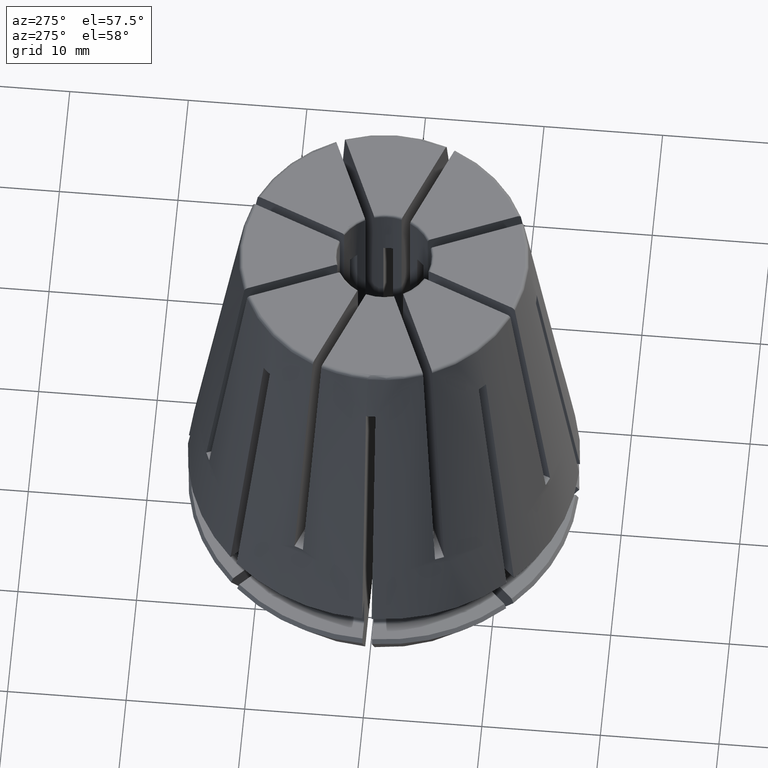
[diagram: clean part render]
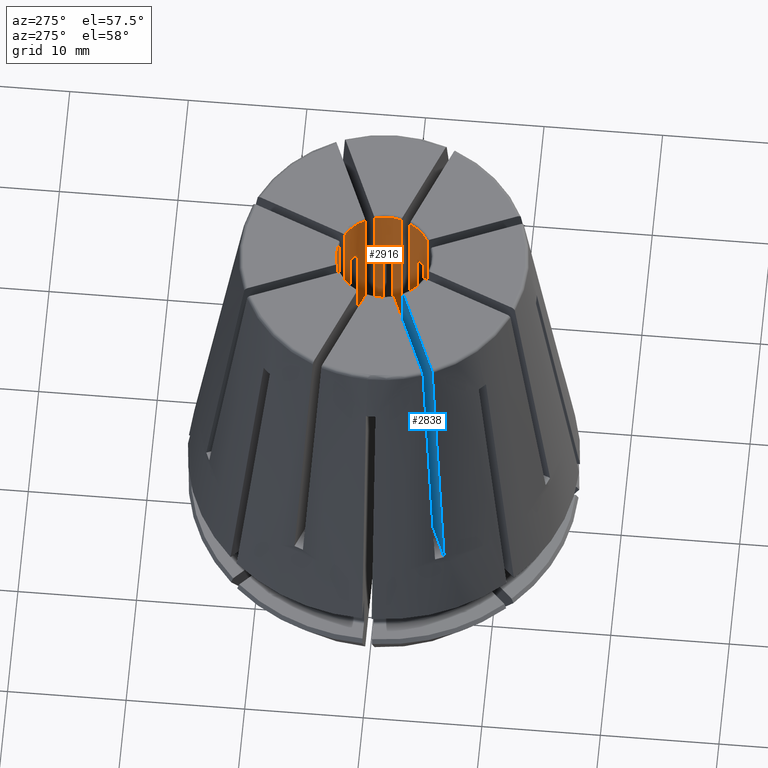
[diagram: same view with the hole feature highlighted: cylindrical wall and planar end face, labeled with their STEP entity ids]
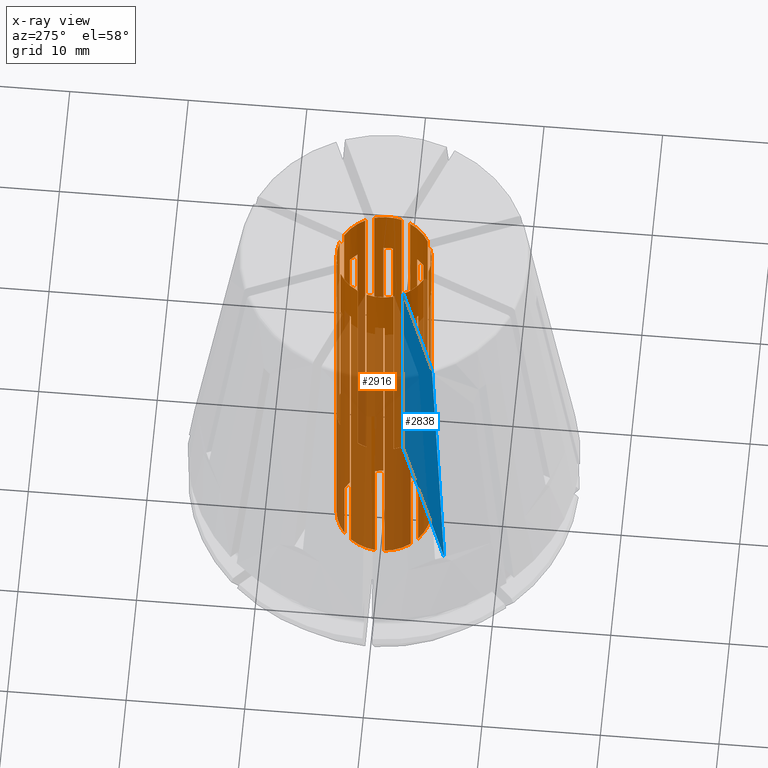
[diagram: x-ray of the same camera — body ghosted, the hole faces saturated]
A machine part, auxiliary view. The highlighted faces form one hole feature of diameter 8 mm: the cylindrical wall (entity #2916, orange) and its adjacent planar end face (entity #2838, blue) — they share a circular edge in the B-rep.
The next image is the same camera in x-ray (body ghosted, the hole faces saturated) — the bore reads through the body.
Wall:
#28=CYLINDRICAL_SURFACE('',#3250,4.);
#224=LINE('',#4088,#384);
#227=LINE('',#4115,#387);
#232=LINE('',#4150,#392);
#235=LINE('',#4177,#395);
#238=LINE('',#4195,#398);
#247=LINE('',#4263,#407);
#248=LINE('',#4265,#408);
#261=LINE('',#4349,#421);
#263=LINE('',#4361,#423);
#272=LINE('',#4429,#432);
#273=LINE('',#4431,#433);
#286=LINE('',#4515,#446);
#292=LINE('',#4562,#452);
#295=LINE('',#4569,#455);
#308=LINE('',#4656,#468);
#320=LINE('',#4918,#480);
#323=LINE('',#4925,#483);
#326=LINE('',#4945,#486);
#330=LINE('',#4977,#490);
#334=LINE('',#5004,#494);
#339=LINE('',#5046,#499);
#341=LINE('',#5050,#501);
#348=LINE('',#5097,#508);
#350=LINE('',#5106,#510);
#374=LINE('',#5396,#534);
#375=LINE('',#5397,#535);
#376=LINE('',#5398,#536);
#377=LINE('',#5399,#537);
#378=LINE('',#5400,#538);
#379=LINE('',#5401,#539);
#380=LINE('',#5402,#540);
#381=LINE('',#5403,#541);
#384=VECTOR('',#3275,1000.);
#387=VECTOR('',#3280,1000.);
#392=VECTOR('',#3299,1000.);
#395=VECTOR('',#3304,1000.);
#398=VECTOR('',#3315,1000.);
#407=VECTOR('',#3334,1000.);
#408=VECTOR('',#3337,1000.);
#421=VECTOR('',#3362,1000.);
#423=VECTOR('',#3366,1000.);
#432=VECTOR('',#3385,1000.);
#433=VECTOR('',#3388,1000.);
#446=VECTOR('',#3413,1000.);
#452=VECTOR('',#3423,1000.);
#455=VECTOR('',#3428,1000.);
#468=VECTOR('',#3459,1000.);
#480=VECTOR('',#3691,1000.);
#483=VECTOR('',#3696,1000.);
#486=VECTOR('',#3701,1000.);
#490=VECTOR('',#3719,1000.);
#494=VECTOR('',#3731,1000.);
#499=VECTOR('',#3744,1000.);
#501=VECTOR('',#3748,1000.);
#508=VECTOR('',#3763,1000.);
#510=VECTOR('',#3767,1000.);
#534=VECTOR('',#4037,1000.);
#535=VECTOR('',#4038,1000.);
#536=VECTOR('',#4039,1000.);
#537=VECTOR('',#4040,1000.);
#538=VECTOR('',#4041,1000.);
#539=VECTOR('',#4042,1000.);
#540=VECTOR('',#4043,1000.);
#541=VECTOR('',#4044,1000.);
#1302=ORIENTED_EDGE('',*,*,#1454,.F.);
#1303=ORIENTED_EDGE('',*,*,#1466,.T.);
#1304=ORIENTED_EDGE('',*,*,#1805,.T.);
#1305=ORIENTED_EDGE('',*,*,#1737,.F.);
#1306=ORIENTED_EDGE('',*,*,#1746,.F.);
#1307=ORIENTED_EDGE('',*,*,#1734,.T.);
#1308=ORIENTED_EDGE('',*,*,#1679,.T.);
#1309=ORIENTED_EDGE('',*,*,#1540,.F.);
#1310=ORIENTED_EDGE('',*,*,#1764,.F.);
#1311=ORIENTED_EDGE('',*,*,#1898,.T.);
#1312=ORIENTED_EDGE('',*,*,#1704,.T.);
#1313=ORIENTED_EDGE('',*,*,#1490,.F.);
#1314=ORIENTED_EDGE('',*,*,#1486,.F.);
#1315=ORIENTED_EDGE('',*,*,#1899,.T.);
#1316=ORIENTED_EDGE('',*,*,#1862,.T.);
#1317=ORIENTED_EDGE('',*,*,#1776,.F.);
#1318=ORIENTED_EDGE('',*,*,#1468,.F.);
#1319=ORIENTED_EDGE('',*,*,#1900,.T.);
#1320=ORIENTED_EDGE('',*,*,#1639,.T.);
#1321=ORIENTED_EDGE('',*,*,#1901,.F.);
#1322=ORIENTED_EDGE('',*,*,#1748,.F.);
#1323=ORIENTED_EDGE('',*,*,#1743,.T.);
#1324=ORIENTED_EDGE('',*,*,#1657,.T.);
#1325=ORIENTED_EDGE('',*,*,#1753,.F.);
#1326=ORIENTED_EDGE('',*,*,#1756,.F.);
#1327=ORIENTED_EDGE('',*,*,#1762,.T.);
#1328=ORIENTED_EDGE('',*,*,#1823,.T.);
#1329=ORIENTED_EDGE('',*,*,#1477,.F.);
#1330=ORIENTED_EDGE('',*,*,#1472,.F.);
#1331=ORIENTED_EDGE('',*,*,#1484,.T.);
#1332=ORIENTED_EDGE('',*,*,#1815,.T.);
#1333=ORIENTED_EDGE('',*,*,#1459,.F.);
#1334=ORIENTED_EDGE('',*,*,#1837,.T.);
#1335=ORIENTED_EDGE('',*,*,#1794,.T.);
#1336=ORIENTED_EDGE('',*,*,#1781,.F.);
#1337=ORIENTED_EDGE('',*,*,#1774,.F.);
#1338=ORIENTED_EDGE('',*,*,#1846,.T.);
#1339=ORIENTED_EDGE('',*,*,#1511,.T.);
#1340=ORIENTED_EDGE('',*,*,#1495,.F.);
#1341=ORIENTED_EDGE('',*,*,#1510,.F.);
#1342=ORIENTED_EDGE('',*,*,#1855,.T.);
#1343=ORIENTED_EDGE('',*,*,#1561,.T.);
#1344=ORIENTED_EDGE('',*,*,#1545,.F.);
#1345=ORIENTED_EDGE('',*,*,#1560,.F.);
#1346=ORIENTED_EDGE('',*,*,#1647,.T.);
#1347=ORIENTED_EDGE('',*,*,#1603,.T.);
#1348=ORIENTED_EDGE('',*,*,#1615,.F.);
#1349=ORIENTED_EDGE('',*,*,#1600,.F.);
#1350=ORIENTED_EDGE('',*,*,#1634,.T.);
#1351=ORIENTED_EDGE('',*,*,#1902,.T.);
#1352=ORIENTED_EDGE('',*,*,#1802,.F.);
#1353=ORIENTED_EDGE('',*,*,#1791,.F.);
#1354=ORIENTED_EDGE('',*,*,#1841,.T.);
#1355=ORIENTED_EDGE('',*,*,#1903,.T.);
#1356=ORIENTED_EDGE('',*,*,#1523,.F.);
#1357=ORIENTED_EDGE('',*,*,#1537,.F.);
#1358=ORIENTED_EDGE('',*,*,#1850,.T.);
#1359=ORIENTED_EDGE('',*,*,#1904,.T.);
#1360=ORIENTED_EDGE('',*,*,#1573,.F.);
#1361=ORIENTED_EDGE('',*,*,#1587,.F.);
#1362=ORIENTED_EDGE('',*,*,#1859,.T.);
#1363=ORIENTED_EDGE('',*,*,#1905,.T.);
#1364=ORIENTED_EDGE('',*,*,#1617,.F.);
#1365=ORIENTED_EDGE('',*,*,#1631,.F.);
#1454=EDGE_CURVE('',#1910,#1911,#2214,.T.);
#1459=EDGE_CURVE('',#1911,#1915,#224,.T.);
#1466=EDGE_CURVE('',#1910,#1921,#227,.T.);
#1468=EDGE_CURVE('',#1922,#1923,#2216,.T.);
#1472=EDGE_CURVE('',#1926,#1927,#2218,.T.);
#1477=EDGE_CURVE('',#1927,#1931,#232,.T.);
#1484=EDGE_CURVE('',#1926,#1937,#235,.T.);
#1486=EDGE_CURVE('',#1938,#1939,#2220,.T.);
#1490=EDGE_CURVE('',#1939,#1942,#238,.T.);
#1495=EDGE_CURVE('',#1946,#1947,#2222,.T.);
#1510=EDGE_CURVE('',#1960,#1946,#247,.T.);
#1511=EDGE_CURVE('',#1961,#1947,#248,.T.);
#1523=EDGE_CURVE('',#1972,#1973,#2226,.T.);
#1537=EDGE_CURVE('',#1986,#1972,#261,.T.);
#1540=EDGE_CURVE('',#1988,#1989,#263,.T.);
#1545=EDGE_CURVE('',#1993,#1994,#2229,.T.);
#1560=EDGE_CURVE('',#2007,#1993,#272,.T.);
#1561=EDGE_CURVE('',#2008,#1994,#273,.T.);
#1573=EDGE_CURVE('',#2019,#2020,#2233,.T.);
#1587=EDGE_CURVE('',#2033,#2019,#286,.T.);
#1600=EDGE_CURVE('',#2045,#2046,#292,.T.);
#1603=EDGE_CURVE('',#2049,#2048,#295,.T.);
#1615=EDGE_CURVE('',#2046,#2048,#2238,.T.);
#1617=EDGE_CURVE('',#2060,#2061,#2240,.T.);
#1631=EDGE_CURVE('',#2074,#2060,#308,.T.);
#1634=EDGE_CURVE('',#2045,#2075,#2243,.T.);
#1639=EDGE_CURVE('',#2078,#2080,#2246,.T.);
#1647=EDGE_CURVE('',#2007,#2049,#2252,.T.);
#1657=EDGE_CURVE('',#2087,#2085,#2261,.T.);
#1679=EDGE_CURVE('',#2097,#1989,#2279,.T.);
#1704=EDGE_CURVE('',#2113,#1942,#2297,.T.);
#1734=EDGE_CURVE('',#2136,#2097,#320,.T.);
#1737=EDGE_CURVE('',#2138,#2139,#323,.T.);
#1743=EDGE_CURVE('',#2143,#2087,#326,.T.);
#1746=EDGE_CURVE('',#2136,#2138,#2315,.T.);
#1748=EDGE_CURVE('',#2143,#2145,#2317,.T.);
#1753=EDGE_CURVE('',#2149,#2085,#330,.T.);
#1756=EDGE_CURVE('',#2151,#2149,#2319,.T.);
#1762=EDGE_CURVE('',#2151,#2156,#334,.T.);
#1764=EDGE_CURVE('',#2157,#1988,#2321,.T.);
#1774=EDGE_CURVE('',#2163,#2164,#339,.T.);
#1776=EDGE_CURVE('',#1923,#2165,#341,.T.);
#1781=EDGE_CURVE('',#2164,#2169,#2323,.T.);
#1791=EDGE_CURVE('',#2176,#2177,#348,.T.);
#1794=EDGE_CURVE('',#2179,#2169,#350,.T.);
#1802=EDGE_CURVE('',#2177,#2183,#2325,.T.);
#1805=EDGE_CURVE('',#1921,#2139,#2327,.T.);
#1815=EDGE_CURVE('',#1937,#1915,#2335,.T.);
#1823=EDGE_CURVE('',#2156,#1931,#2341,.T.);
#1837=EDGE_CURVE('',#2074,#2179,#2351,.T.);
#1841=EDGE_CURVE('',#2176,#2196,#2354,.T.);
#1846=EDGE_CURVE('',#2163,#1961,#2357,.T.);
#1850=EDGE_CURVE('',#1986,#2199,#2360,.T.);
#1855=EDGE_CURVE('',#1960,#2008,#2363,.T.);
#1859=EDGE_CURVE('',#2033,#2202,#2366,.T.);
#1862=EDGE_CURVE('',#2203,#2165,#2367,.T.);
#1898=EDGE_CURVE('',#2157,#2113,#374,.T.);
#1899=EDGE_CURVE('',#1938,#2203,#375,.T.);
#1900=EDGE_CURVE('',#1922,#2078,#376,.T.);
#1901=EDGE_CURVE('',#2145,#2080,#377,.T.);
#1902=EDGE_CURVE('',#2075,#2183,#378,.T.);
#1903=EDGE_CURVE('',#2196,#1973,#379,.T.);
#1904=EDGE_CURVE('',#2199,#2020,#380,.T.);
#1905=EDGE_CURVE('',#2202,#2061,#381,.T.);
#1910=VERTEX_POINT('',#4072);
#1911=VERTEX_POINT('',#4073);
#1915=VERTEX_POINT('',#4089);
#1921=VERTEX_POINT('',#4114);
#1922=VERTEX_POINT('',#4125);
#1923=VERTEX_POINT('',#4126);
#1926=VERTEX_POINT('',#4134);
#1927=VERTEX_POINT('',#4135);
#1931=VERTEX_POINT('',#4151);
#1937=VERTEX_POINT('',#4176);
#1938=VERTEX_POINT('',#4187);
#1939=VERTEX_POINT('',#4188);
#1942=VERTEX_POINT('',#4196);
#1946=VERTEX_POINT('',#4215);
#1947=VERTEX_POINT('',#4216);
#1960=VERTEX_POINT('',#4262);
#1961=VERTEX_POINT('',#4266);
#1972=VERTEX_POINT('',#4308);
#1973=VERTEX_POINT('',#4309);
#1986=VERTEX_POINT('',#4348);
#1988=VERTEX_POINT('',#4360);
#1989=VERTEX_POINT('',#4362);
#1993=VERTEX_POINT('',#4381);
#1994=VERTEX_POINT('',#4382);
#2007=VERTEX_POINT('',#4428);
#2008=VERTEX_POINT('',#4432);
#2019=VERTEX_POINT('',#4474);
#2020=VERTEX_POINT('',#4475);
#2033=VERTEX_POINT('',#4514);
#2045=VERTEX_POINT('',#4561);
#2046=VERTEX_POINT('',#4563);
#2048=VERTEX_POINT('',#4568);
#2049=VERTEX_POINT('',#4570);
#2060=VERTEX_POINT('',#4615);
#2061=VERTEX_POINT('',#4616);
#2074=VERTEX_POINT('',#4655);
#2075=VERTEX_POINT('',#4669);
#2078=VERTEX_POINT('',#4679);
#2080=VERTEX_POINT('',#4686);
#2085=VERTEX_POINT('',#4724);
#2087=VERTEX_POINT('',#4727);
#2097=VERTEX_POINT('',#4774);
#2113=VERTEX_POINT('',#4833);
#2136=VERTEX_POINT('',#4919);
#2138=VERTEX_POINT('',#4924);
#2139=VERTEX_POINT('',#4926);
#2143=VERTEX_POINT('',#4946);
#2145=VERTEX_POINT('',#4961);
#2149=VERTEX_POINT('',#4976);
#2151=VERTEX_POINT('',#4986);
#2156=VERTEX_POINT('',#5003);
#2157=VERTEX_POINT('',#5014);
#2163=VERTEX_POINT('',#5045);
#2164=VERTEX_POINT('',#5047);
#2165=VERTEX_POINT('',#5051);
#2169=VERTEX_POINT('',#5070);
#2176=VERTEX_POINT('',#5096);
#2177=VERTEX_POINT('',#5098);
#2179=VERTEX_POINT('',#5107);
#2183=VERTEX_POINT('',#5132);
#2196=VERTEX_POINT('',#5217);
#2199=VERTEX_POINT('',#5241);
#2202=VERTEX_POINT('',#5266);
#2203=VERTEX_POINT('',#5278);
#2214=CIRCLE('',#2942,4.);
#2216=CIRCLE('',#2947,4.);
#2218=CIRCLE('',#2950,4.);
#2220=CIRCLE('',#2955,4.);
#2222=CIRCLE('',#2959,4.);
#2226=CIRCLE('',#2966,4.);
#2229=CIRCLE('',#2972,4.);
#2233=CIRCLE('',#2979,4.);
#2238=CIRCLE('',#2988,4.);
#2240=CIRCLE('',#2991,4.);
#2243=CIRCLE('',#2996,4.);
#2246=CIRCLE('',#3000,4.);
#2252=CIRCLE('',#3009,4.);
#2261=CIRCLE('',#3024,4.);
#2279=CIRCLE('',#3051,4.);
#2297=CIRCLE('',#3078,4.);
#2315=CIRCLE('',#3108,4.);
#2317=CIRCLE('',#3111,4.);
#2319=CIRCLE('',#3115,4.);
#2321=CIRCLE('',#3119,4.);
#2323=CIRCLE('',#3124,4.);
#2325=CIRCLE('',#3129,4.);
#2327=CIRCLE('',#3132,4.);
#2335=CIRCLE('',#3145,4.);
#2341=CIRCLE('',#3156,4.);
#2351=CIRCLE('',#3176,4.);
#2354=CIRCLE('',#3182,4.);
#2357=CIRCLE('',#3188,4.);
#2360=CIRCLE('',#3194,4.);
#2363=CIRCLE('',#3200,4.);
#2366=CIRCLE('',#3207,4.);
#2367=CIRCLE('',#3210,4.);
#2525=EDGE_LOOP('',(#1302,#1303,#1304,#1305,#1306,#1307,#1308,#1309,#1310,
#1311,#1312,#1313,#1314,#1315,#1316,#1317,#1318,#1319,#1320,#1321,#1322,
#1323,#1324,#1325,#1326,#1327,#1328,#1329,#1330,#1331,#1332,#1333));
#2526=EDGE_LOOP('',(#1334,#1335,#1336,#1337,#1338,#1339,#1340,#1341,#1342,
#1343,#1344,#1345,#1346,#1347,#1348,#1349,#1350,#1351,#1352,#1353,#1354,
#1355,#1356,#1357,#1358,#1359,#1360,#1361,#1362,#1363,#1364,#1365));
#2681=FACE_BOUND('',#2525,.T.);
#2682=FACE_BOUND('',#2526,.T.);
#2916=ADVANCED_FACE('',(#2681,#2682),#28,.F.);
#2942=AXIS2_PLACEMENT_3D('',#4071,#3267,#3268);
#2947=AXIS2_PLACEMENT_3D('',#4124,#3283,#3284);
#2950=AXIS2_PLACEMENT_3D('',#4133,#3291,#3292);
#2955=AXIS2_PLACEMENT_3D('',#4186,#3307,#3308);
#2959=AXIS2_PLACEMENT_3D('',#4214,#3319,#3320);
#2966=AXIS2_PLACEMENT_3D('',#4307,#3347,#3348);
#2972=AXIS2_PLACEMENT_3D('',#4380,#3370,#3371);
#2979=AXIS2_PLACEMENT_3D('',#4473,#3398,#3399);
#2988=AXIS2_PLACEMENT_3D('',#4611,#3438,#3439);
#2991=AXIS2_PLACEMENT_3D('',#4614,#3444,#3445);
#2996=AXIS2_PLACEMENT_3D('',#4671,#3462,#3463);
#3000=AXIS2_PLACEMENT_3D('',#4687,#3470,#3471);
#3009=AXIS2_PLACEMENT_3D('',#4705,#3489,#3490);
#3024=AXIS2_PLACEMENT_3D('',#4726,#3519,#3520);
#3051=AXIS2_PLACEMENT_3D('',#4773,#3575,#3576);
#3078=AXIS2_PLACEMENT_3D('',#4832,#3633,#3634);
#3108=AXIS2_PLACEMENT_3D('',#4957,#3705,#3706);
#3111=AXIS2_PLACEMENT_3D('',#4960,#3711,#3712);
#3115=AXIS2_PLACEMENT_3D('',#4985,#3723,#3724);
#3119=AXIS2_PLACEMENT_3D('',#5013,#3734,#3735);
#3124=AXIS2_PLACEMENT_3D('',#5069,#3752,#3753);
#3129=AXIS2_PLACEMENT_3D('',#5131,#3774,#3775);
#3132=AXIS2_PLACEMENT_3D('',#5137,#3781,#3782);
#3145=AXIS2_PLACEMENT_3D('',#5158,#3808,#3809);
#3156=AXIS2_PLACEMENT_3D('',#5176,#3831,#3832);
#3176=AXIS2_PLACEMENT_3D('',#5207,#3874,#3875);
#3182=AXIS2_PLACEMENT_3D('',#5216,#3887,#3888);
#3188=AXIS2_PLACEMENT_3D('',#5231,#3899,#3900);
#3194=AXIS2_PLACEMENT_3D('',#5240,#3912,#3913);
#3200=AXIS2_PLACEMENT_3D('',#5255,#3924,#3925);
#3207=AXIS2_PLACEMENT_3D('',#5265,#3939,#3940);
#3210=AXIS2_PLACEMENT_3D('',#5277,#3945,#3946);
#3250=AXIS2_PLACEMENT_3D('',#5395,#4035,#4036);
#3267=DIRECTION('',(0.,0.,-1.));
#3268=DIRECTION('',(-1.,0.,0.));
#3275=DIRECTION('',(0.,0.,1.));
#3280=DIRECTION('',(0.,0.,1.));
#3283=DIRECTION('',(0.,0.,-1.));
#3284=DIRECTION('',(-1.,0.,0.));
#3291=DIRECTION('',(0.,0.,-1.));
#3292=DIRECTION('',(-1.,0.,0.));
#3299=DIRECTION('',(0.,0.,1.));
#3304=DIRECTION('',(0.,0.,1.));
#3307=DIRECTION('',(0.,0.,-1.));
#3308=DIRECTION('',(-1.,0.,0.));
#3315=DIRECTION('',(0.,0.,1.));
#3319=DIRECTION('',(0.,0.,1.));
#3320=DIRECTION('',(1.,0.,0.));
#3334=DIRECTION('',(0.,0.,1.));
#3337=DIRECTION('',(0.,0.,1.));
#3347=DIRECTION('',(0.,0.,1.));
#3348=DIRECTION('',(1.,0.,0.));
#3362=DIRECTION('',(0.,0.,1.));
#3366=DIRECTION('',(0.,0.,1.));
#3370=DIRECTION('',(0.,0.,1.));
#3371=DIRECTION('',(1.,0.,0.));
#3385=DIRECTION('',(0.,0.,1.));
#3388=DIRECTION('',(0.,0.,1.));
#3398=DIRECTION('',(0.,0.,1.));
#3399=DIRECTION('',(1.,0.,0.));
#3413=DIRECTION('',(0.,0.,1.));
#3423=DIRECTION('',(0.,0.,1.));
#3428=DIRECTION('',(0.,0.,1.));
#3438=DIRECTION('',(0.,0.,1.));
#3439=DIRECTION('',(1.,0.,0.));
#3444=DIRECTION('',(0.,0.,1.));
#3445=DIRECTION('',(1.,0.,0.));
#3459=DIRECTION('',(0.,0.,1.));
#3462=DIRECTION('',(0.,0.,-1.));
#3463=DIRECTION('',(-1.,0.,0.));
#3470=DIRECTION('',(0.,0.,1.));
#3471=DIRECTION('',(1.,0.,0.));
#3489=DIRECTION('',(0.,0.,-1.));
#3490=DIRECTION('',(-1.,0.,0.));
#3519=DIRECTION('',(0.,0.,1.));
#3520=DIRECTION('',(1.,0.,0.));
#3575=DIRECTION('',(0.,0.,1.));
#3576=DIRECTION('',(1.,0.,0.));
#3633=DIRECTION('',(0.,0.,1.));
#3634=DIRECTION('',(1.,0.,0.));
#3691=DIRECTION('',(0.,0.,1.));
#3696=DIRECTION('',(0.,0.,1.));
#3701=DIRECTION('',(0.,0.,1.));
#3705=DIRECTION('',(0.,0.,-1.));
#3706=DIRECTION('',(-1.,0.,0.));
#3711=DIRECTION('',(0.,0.,-1.));
#3712=DIRECTION('',(-1.,0.,0.));
#3719=DIRECTION('',(0.,0.,1.));
#3723=DIRECTION('',(0.,0.,-1.));
#3724=DIRECTION('',(-1.,0.,0.));
#3731=DIRECTION('',(0.,0.,1.));
#3734=DIRECTION('',(0.,0.,-1.));
#3735=DIRECTION('',(-1.,0.,0.));
#3744=DIRECTION('',(0.,0.,1.));
#3748=DIRECTION('',(0.,0.,1.));
#3752=DIRECTION('',(0.,0.,1.));
#3753=DIRECTION('',(1.,0.,0.));
#3763=DIRECTION('',(0.,0.,1.));
#3767=DIRECTION('',(0.,0.,1.));
#3774=DIRECTION('',(0.,0.,1.));
#3775=DIRECTION('',(1.,0.,0.));
#3781=DIRECTION('',(0.,0.,1.));
#3782=DIRECTION('',(1.,0.,0.));
#3808=DIRECTION('',(0.,0.,1.));
#3809=DIRECTION('',(1.,0.,0.));
#3831=DIRECTION('',(0.,0.,1.));
#3832=DIRECTION('',(1.,0.,0.));
#3874=DIRECTION('',(0.,0.,-1.));
#3875=DIRECTION('',(-1.,0.,0.));
#3887=DIRECTION('',(0.,0.,-1.));
#3888=DIRECTION('',(-1.,0.,0.));
#3899=DIRECTION('',(0.,0.,-1.));
#3900=DIRECTION('',(-1.,0.,0.));
#3912=DIRECTION('',(0.,0.,-1.));
#3913=DIRECTION('',(-1.,0.,0.));
#3924=DIRECTION('',(0.,0.,-1.));
#3925=DIRECTION('',(-1.,0.,0.));
#3939=DIRECTION('',(0.,0.,-1.));
#3940=DIRECTION('',(-1.,0.,0.));
#3945=DIRECTION('',(0.,0.,1.));
#3946=DIRECTION('',(1.,0.,0.));
#4035=DIRECTION('',(0.,0.,-1.));
#4036=DIRECTION('',(1.,0.,0.));
#4037=DIRECTION('',(0.,0.,1.));
#4038=DIRECTION('',(0.,0.,1.));
#4039=DIRECTION('',(0.,0.,1.));
#4040=DIRECTION('',(0.,0.,1.));
#4041=DIRECTION('',(0.,0.,1.));
#4042=DIRECTION('',(0.,0.,1.));
#4043=DIRECTION('',(0.,0.,1.));
#4044=DIRECTION('',(0.,0.,1.));
#4071=CARTESIAN_POINT('',(0.,0.,6.9));
#4072=CARTESIAN_POINT('',(3.83006748594071,-1.1535090173639,6.9));
#4073=CARTESIAN_POINT('',(3.52392074004864,-1.89261264337293,6.9));
#4088=CARTESIAN_POINT('',(3.52392074004863,-1.89261264337293,60.));
#4089=CARTESIAN_POINT('',(3.52392074004863,-1.89261264337293,30.7));
#4114=CARTESIAN_POINT('',(3.8300674859407,-1.1535090173639,30.7));
#4115=CARTESIAN_POINT('',(3.8300674859407,-1.1535090173639,60.));
#4124=CARTESIAN_POINT('',(0.,0.,6.9));
#4125=CARTESIAN_POINT('',(-3.8300674859407,1.1535090173639,6.9));
#4126=CARTESIAN_POINT('',(-3.52392074004863,1.89261264337293,6.9));
#4133=CARTESIAN_POINT('',(0.,0.,6.9));
#4134=CARTESIAN_POINT('',(1.89261264337293,-3.52392074004863,6.9));
#4135=CARTESIAN_POINT('',(1.15350901736391,-3.8300674859407,6.9));
#4150=CARTESIAN_POINT('',(1.1535090173639,-3.83006748594071,60.));
#4151=CARTESIAN_POINT('',(1.1535090173639,-3.83006748594071,30.7));
#4176=CARTESIAN_POINT('',(1.89261264337293,-3.52392074004863,30.7));
#4177=CARTESIAN_POINT('',(1.89261264337293,-3.52392074004863,60.));
#4186=CARTESIAN_POINT('',(0.,0.,6.9));
#4187=CARTESIAN_POINT('',(-1.89261264337293,3.52392074004863,6.9));
#4188=CARTESIAN_POINT('',(-1.1535090173639,3.8300674859407,6.9));
#4195=CARTESIAN_POINT('',(-1.15350901736391,3.8300674859407,60.));
#4196=CARTESIAN_POINT('',(-1.15350901736377,3.83006748594037,30.7000000000001));
#4214=CARTESIAN_POINT('',(0.,0.,25.9));
#4215=CARTESIAN_POINT('',(-0.4,-3.97994974842647,25.9));
#4216=CARTESIAN_POINT('',(0.4,-3.97994974842647,25.9));
#4262=CARTESIAN_POINT('',(-0.399999999999999,-3.97994974842612,-8.90000000000008));
#4263=CARTESIAN_POINT('',(-0.4,-3.97994974842647,60.));
#4265=CARTESIAN_POINT('',(0.4,-3.97994974842647,60.));
#4266=CARTESIAN_POINT('',(0.400000000000001,-3.97994974842612,-8.90000000000008));
#4307=CARTESIAN_POINT('',(0.,0.,25.9));
#4308=CARTESIAN_POINT('',(0.4,3.97994974842647,25.9));
#4309=CARTESIAN_POINT('',(-0.4,3.97994974842647,25.9));
#4348=CARTESIAN_POINT('',(0.4,3.97994974842648,-8.9));
#4349=CARTESIAN_POINT('',(0.4,3.97994974842647,60.));
#4360=CARTESIAN_POINT('',(1.89261264337293,3.52392074004863,6.9));
#4361=CARTESIAN_POINT('',(1.89261264337293,3.52392074004863,60.));
#4362=CARTESIAN_POINT('',(1.8926126433728,3.5239207400483,30.7000000000001));
#4380=CARTESIAN_POINT('',(0.,0.,25.9));
#4381=CARTESIAN_POINT('',(-3.09709216836868,-2.53140674341943,25.9));
#4382=CARTESIAN_POINT('',(-2.53140674341943,-3.09709216836868,25.9));
#4428=CARTESIAN_POINT('',(-3.09709216836842,-2.53140674341918,-8.90000000000008));
#4429=CARTESIAN_POINT('',(-3.09709216836868,-2.53140674341943,60.));
#4431=CARTESIAN_POINT('',(-2.53140674341943,-3.09709216836868,60.));
#4432=CARTESIAN_POINT('',(-2.53140674341918,-3.09709216836842,-8.90000000000008));
#4473=CARTESIAN_POINT('',(0.,0.,25.9));
#4474=CARTESIAN_POINT('',(3.09709216836868,2.53140674341944,25.9));
#4475=CARTESIAN_POINT('',(2.53140674341943,3.09709216836868,25.9));
#4514=CARTESIAN_POINT('',(3.09709216836868,2.53140674341944,-8.9));
#4515=CARTESIAN_POINT('',(3.09709216836868,2.53140674341944,60.));
#4561=CARTESIAN_POINT('',(-3.97994974842612,0.4,-8.90000000000008));
#4562=CARTESIAN_POINT('',(-3.97994974842647,0.4,60.));
#4563=CARTESIAN_POINT('',(-3.97994974842647,0.4,25.9));
#4568=CARTESIAN_POINT('',(-3.97994974842647,-0.4,25.9));
#4569=CARTESIAN_POINT('',(-3.97994974842647,-0.4,60.));
#4570=CARTESIAN_POINT('',(-3.97994974842612,-0.4,-8.90000000000008));
#4611=CARTESIAN_POINT('',(0.,0.,25.9));
#4614=CARTESIAN_POINT('',(0.,0.,25.9));
#4615=CARTESIAN_POINT('',(3.97994974842647,-0.4,25.9));
#4616=CARTESIAN_POINT('',(3.97994974842647,0.4,25.9));
#4655=CARTESIAN_POINT('',(3.97994974842648,-0.4,-8.9));
#4656=CARTESIAN_POINT('',(3.97994974842647,-0.4,60.));
#4669=CARTESIAN_POINT('',(-3.09709216836868,2.53140674341943,-8.9));
#4671=CARTESIAN_POINT('',(0.,0.,-8.9));
#4679=CARTESIAN_POINT('',(-3.8300674859407,1.1535090173639,30.7));
#4686=CARTESIAN_POINT('',(-3.8300674859407,-1.1535090173639,30.7));
#4687=CARTESIAN_POINT('',(0.,0.,30.7));
#4705=CARTESIAN_POINT('',(0.,0.,-8.9));
#4724=CARTESIAN_POINT('',(-1.89261264337293,-3.52392074004863,30.7));
#4726=CARTESIAN_POINT('',(0.,0.,30.7));
#4727=CARTESIAN_POINT('',(-3.52392074004863,-1.89261264337293,30.7));
#4773=CARTESIAN_POINT('',(0.,0.,30.7));
#4774=CARTESIAN_POINT('',(3.5239207400483,1.8926126433728,30.7000000000001));
#4832=CARTESIAN_POINT('',(0.,0.,30.7));
#4833=CARTESIAN_POINT('',(1.1535090173639,3.83006748594071,30.7));
#4918=CARTESIAN_POINT('',(3.52392074004863,1.89261264337293,60.));
#4919=CARTESIAN_POINT('',(3.52392074004863,1.89261264337293,6.9));
#4924=CARTESIAN_POINT('',(3.8300674859407,1.1535090173639,6.9));
#4925=CARTESIAN_POINT('',(3.8300674859407,1.1535090173639,60.));
#4926=CARTESIAN_POINT('',(3.83006748594037,1.15350901736377,30.7000000000001));
#4945=CARTESIAN_POINT('',(-3.52392074004863,-1.89261264337293,60.));
#4946=CARTESIAN_POINT('',(-3.52392074004863,-1.89261264337293,6.9));
#4957=CARTESIAN_POINT('',(0.,0.,6.9));
#4960=CARTESIAN_POINT('',(0.,0.,6.9));
#4961=CARTESIAN_POINT('',(-3.8300674859407,-1.1535090173639,6.9));
#4976=CARTESIAN_POINT('',(-1.89261264337293,-3.52392074004863,6.9));
#4977=CARTESIAN_POINT('',(-1.89261264337293,-3.52392074004863,60.));
#4985=CARTESIAN_POINT('',(0.,0.,6.9));
#4986=CARTESIAN_POINT('',(-1.1535090173639,-3.8300674859407,6.9));
#5003=CARTESIAN_POINT('',(-1.1535090173639,-3.8300674859407,30.7));
#5004=CARTESIAN_POINT('',(-1.1535090173639,-3.8300674859407,60.));
#5013=CARTESIAN_POINT('',(0.,0.,6.9));
#5014=CARTESIAN_POINT('',(1.1535090173639,3.8300674859407,6.9));
#5045=CARTESIAN_POINT('',(2.53140674341918,-3.09709216836842,-8.90000000000008));
#5046=CARTESIAN_POINT('',(2.53140674341943,-3.09709216836868,60.));
#5047=CARTESIAN_POINT('',(2.53140674341943,-3.09709216836868,25.9));
#5050=CARTESIAN_POINT('',(-3.52392074004863,1.89261264337293,60.));
#5051=CARTESIAN_POINT('',(-3.5239207400483,1.8926126433728,30.7000000000001));
#5069=CARTESIAN_POINT('',(0.,0.,25.9));
#5070=CARTESIAN_POINT('',(3.09709216836868,-2.53140674341943,25.9));
#5096=CARTESIAN_POINT('',(-2.53140674341944,3.09709216836868,-8.9));
#5097=CARTESIAN_POINT('',(-2.53140674341944,3.09709216836868,60.));
#5098=CARTESIAN_POINT('',(-2.53140674341943,3.09709216836867,25.9));
#5106=CARTESIAN_POINT('',(3.09709216836868,-2.53140674341943,60.));
#5107=CARTESIAN_POINT('',(3.09709216836842,-2.53140674341918,-8.90000000000008));
#5131=CARTESIAN_POINT('',(0.,0.,25.9));
#5132=CARTESIAN_POINT('',(-3.09709216836868,2.53140674341943,25.9));
#5137=CARTESIAN_POINT('',(0.,0.,30.7));
#5158=CARTESIAN_POINT('',(0.,0.,30.7));
#5176=CARTESIAN_POINT('',(0.,0.,30.7));
#5207=CARTESIAN_POINT('',(0.,0.,-8.9));
#5216=CARTESIAN_POINT('',(0.,0.,-8.9));
#5217=CARTESIAN_POINT('',(-0.4,3.97994974842648,-8.9));
#5231=CARTESIAN_POINT('',(0.,0.,-8.9));
#5240=CARTESIAN_POINT('',(0.,0.,-8.9));
#5241=CARTESIAN_POINT('',(2.53140674341943,3.09709216836868,-8.9));
#5255=CARTESIAN_POINT('',(0.,0.,-8.9));
#5265=CARTESIAN_POINT('',(0.,0.,-8.9));
#5266=CARTESIAN_POINT('',(3.97994974842648,0.4,-8.9));
#5277=CARTESIAN_POINT('',(0.,0.,30.7));
#5278=CARTESIAN_POINT('',(-1.89261264337293,3.52392074004863,30.7));
#5395=CARTESIAN_POINT('',(0.,0.,60.));
#5396=CARTESIAN_POINT('',(1.1535090173639,3.83006748594071,60.));
#5397=CARTESIAN_POINT('',(-1.89261264337293,3.52392074004863,60.));
#5398=CARTESIAN_POINT('',(-3.8300674859407,1.1535090173639,60.));
#5399=CARTESIAN_POINT('',(-3.8300674859407,-1.1535090173639,60.));
#5400=CARTESIAN_POINT('',(-3.09709216836868,2.53140674341943,60.));
#5401=CARTESIAN_POINT('',(-0.4,3.97994974842647,60.));
#5402=CARTESIAN_POINT('',(2.53140674341943,3.09709216836868,60.));
#5403=CARTESIAN_POINT('',(3.97994974842647,0.4,60.));
End face:
#162=B_SPLINE_CURVE_WITH_KNOTS('',3,(#4728,#4729,#4730,#4731),
 .UNSPECIFIED.,.F.,.F.,(4,4),(0.,0.000313175438327825),.UNSPECIFIED.);
#177=B_SPLINE_CURVE_WITH_KNOTS('',3,(#4938,#4939,#4940,#4941),
 .UNSPECIFIED.,.F.,.F.,(4,4),(7.75791922889773E-18,0.000427231072612406),
 .UNSPECIFIED.);
#178=B_SPLINE_CURVE_WITH_KNOTS('',3,(#4949,#4950,#4951,#4952,#4953,#4954,
#4955),.UNSPECIFIED.,.F.,.F.,(4,3,4),(2.01967621565505E-7,0.0214077289743351,
0.0239754740322674),.UNSPECIFIED.);
#325=LINE('',#4944,#485);
#326=LINE('',#4945,#486);
#327=LINE('',#4947,#487);
#485=VECTOR('',#3700,1000.);
#486=VECTOR('',#3701,1000.);
#487=VECTOR('',#3702,1000.);
#895=ORIENTED_EDGE('',*,*,#1741,.F.);
#896=ORIENTED_EDGE('',*,*,#1742,.F.);
#897=ORIENTED_EDGE('',*,*,#1658,.F.);
#898=ORIENTED_EDGE('',*,*,#1743,.F.);
#899=ORIENTED_EDGE('',*,*,#1744,.T.);
#900=ORIENTED_EDGE('',*,*,#1745,.F.);
#1658=EDGE_CURVE('',#2087,#2088,#162,.T.);
#1741=EDGE_CURVE('',#2141,#2142,#177,.T.);
#1742=EDGE_CURVE('',#2088,#2141,#325,.T.);
#1743=EDGE_CURVE('',#2143,#2087,#326,.T.);
#1744=EDGE_CURVE('',#2143,#2144,#327,.T.);
#1745=EDGE_CURVE('',#2142,#2144,#178,.T.);
#2087=VERTEX_POINT('',#4727);
#2088=VERTEX_POINT('',#4732);
#2141=VERTEX_POINT('',#4942);
#2142=VERTEX_POINT('',#4943);
#2143=VERTEX_POINT('',#4946);
#2144=VERTEX_POINT('',#4948);
#2446=EDGE_LOOP('',(#895,#896,#897,#898,#899,#900));
#2602=FACE_BOUND('',#2446,.T.);
#2727=PLANE('',#3106);
#2838=ADVANCED_FACE('',(#2602),#2727,.T.);
#3106=AXIS2_PLACEMENT_3D('',#4937,#3698,#3699);
#3698=DIRECTION('',(-0.38268343236509,0.923879532511287,0.));
#3699=DIRECTION('',(0.923879532511287,0.38268343236509,0.));
#3700=DIRECTION('',(-0.923879532511287,-0.38268343236509,0.));
#3701=DIRECTION('',(0.,0.,1.));
#3702=DIRECTION('',(-0.923879532511287,-0.38268343236509,0.));
#4727=CARTESIAN_POINT('',(-3.52392074004863,-1.89261264337293,30.7));
#4728=CARTESIAN_POINT('',(-3.52392074004863,-1.89261264337294,30.7));
#4729=CARTESIAN_POINT('',(-3.52392074004863,-1.89261264337294,30.8058980494926));
#4730=CARTESIAN_POINT('',(-3.61175890817338,-1.92899640390422,30.9000000000011));
#4731=CARTESIAN_POINT('',(-3.70958287212287,-1.96951641649719,30.9000000000012));
#4732=CARTESIAN_POINT('',(-3.709582872123,-1.96951641649724,30.9000000000006));
#4937=CARTESIAN_POINT('',(0.153073372946031,-0.369551813004517,80.2744558301897));
#4938=CARTESIAN_POINT('',(-10.8316469675878,-4.91957195692923,30.9));
#4939=CARTESIAN_POINT('',(-10.9651108430573,-4.97485450423557,30.9));
#4940=CARTESIAN_POINT('',(-11.0876803024934,-5.02562443666676,30.7848070272086));
#4941=CARTESIAN_POINT('',(-11.106264979212,-5.0333224618159,30.641751930288));
#4942=CARTESIAN_POINT('',(-10.8316469675878,-4.91957195692924,30.9));
#4943=CARTESIAN_POINT('',(-11.106264979212,-5.0333224618159,30.641751930288));
#4944=CARTESIAN_POINT('',(0.153073372946036,-0.369551813004515,30.9));
#4945=CARTESIAN_POINT('',(-3.52392074004863,-1.89261264337293,60.));
#4946=CARTESIAN_POINT('',(-3.52392074004863,-1.89261264337293,6.9));
#4947=CARTESIAN_POINT('',(14.5011703348035,5.57362454284104,6.9));
#4948=CARTESIAN_POINT('',(-14.1902636824385,-6.31075655103337,6.9));
#4949=CARTESIAN_POINT('',(-11.106264979212,-5.0333224618159,30.641751930288));
#4950=CARTESIAN_POINT('',(-12.0242702301904,-5.41357268710089,23.5754288437403));
#4951=CARTESIAN_POINT('',(-12.9421615834132,-5.79377573439078,16.509088421508));
#4952=CARTESIAN_POINT('',(-13.8599951565236,-6.17395484837445,9.44273920769953));
#4953=CARTESIAN_POINT('',(-13.970085528979,-6.2195557737322,8.59515960324897));
#4954=CARTESIAN_POINT('',(-14.0801750177276,-6.26515633304655,7.74757986432143));
#4955=CARTESIAN_POINT('',(-14.1902636824385,-6.31075655103338,6.9));